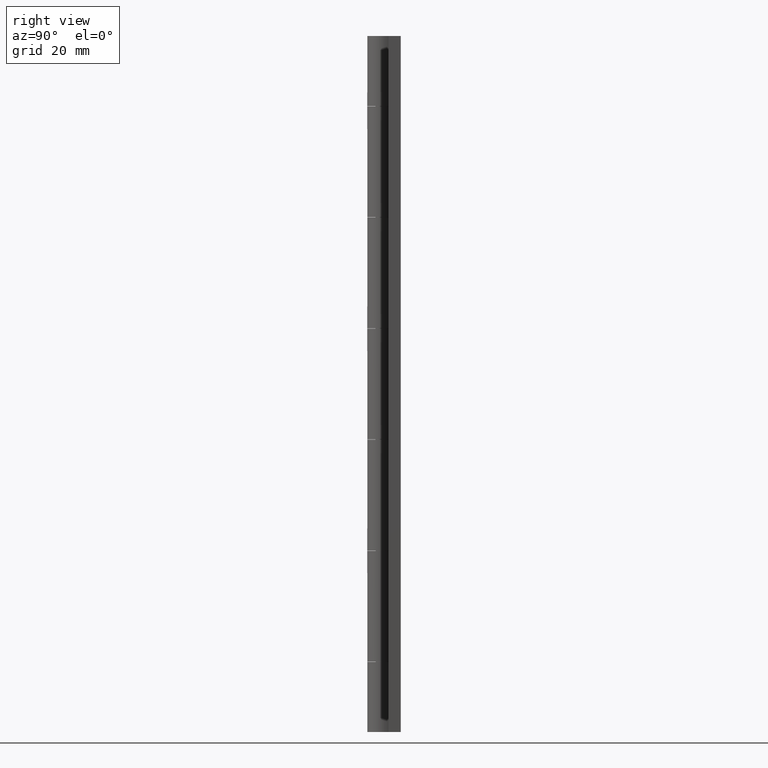
[diagram: clean part render]
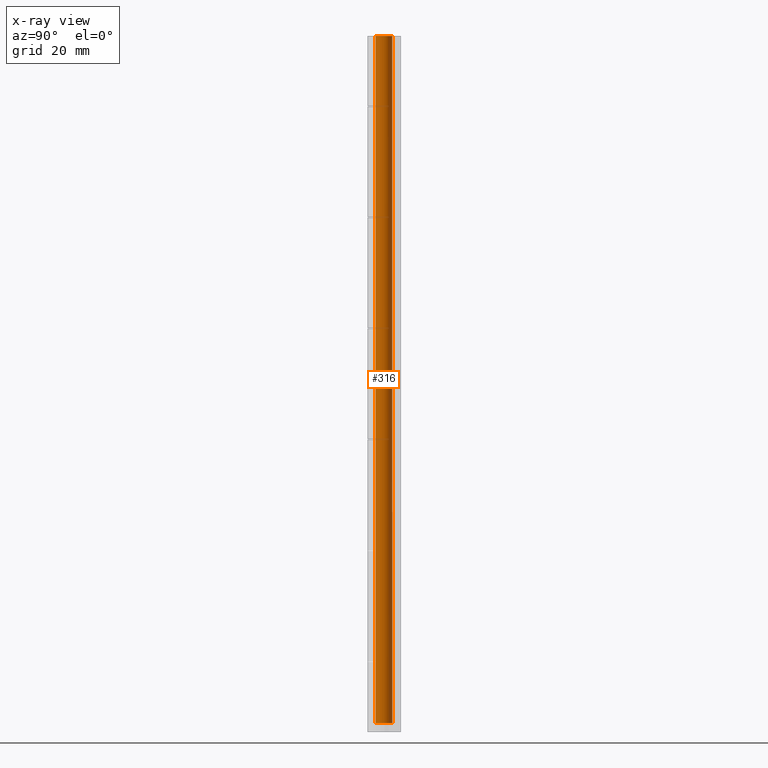
[diagram: x-ray — body ghosted, one internal face saturated and labeled with its STEP entity id]
A machine part, right view, then the same camera in x-ray: the body is ghosted and one INTERNAL B-rep face — a face not visible from any outside direction — is saturated and labeled: STEP entity #316.
In plain terms, the highlighted face is a freeform B-spline surface patch.
Its self-contained STEP definition (entity closure, byte-faithful):
#62=CARTESIAN_POINT('',(1.404215367375836,0.527426964561616,1.604705109890460));
#63=VERTEX_POINT('',#62);
#64=CARTESIAN_POINT('',(1.500000000000000,0.0,1.604705110105455));
#65=VERTEX_POINT('',#64);
#66=CARTESIAN_POINT('',(1.404215367375836,0.527426964561616,1.604705109890460));
#67=CARTESIAN_POINT('',(1.500000000000000,0.272411082262935,1.604705110105456));
#68=CARTESIAN_POINT('',(1.500000000000000,0.0,1.604705110105455));
#76=(BOUNDED_CURVE()B_SPLINE_CURVE(2,(#66,#67,#68),.UNSPECIFIED.,.F.,.U.)B_SPLINE_CURVE_WITH_KNOTS((3,3),(0.440284170254092,0.500000000000000),.UNSPECIFIED.)CURVE()GEOMETRIC_REPRESENTATION_ITEM()RATIONAL_B_SPLINE_CURVE((0.893499553846663,0.930038553646420,1.0))REPRESENTATION_ITEM(''));
#77=EDGE_CURVE('',#63,#65,#76,.T.);
#79=CARTESIAN_POINT('',(0.091572809773356,-1.497202197603987,1.604705110105459));
#80=VERTEX_POINT('',#79);
#81=CARTESIAN_POINT('',(1.500000000000000,0.0,1.604705110105455));
#82=CARTESIAN_POINT('',(1.499999999999999,-1.411059098579355,1.604705110105455));
#83=CARTESIAN_POINT('',(0.091572809773356,-1.497202197603987,1.604705110105460));
#91=(BOUNDED_CURVE()B_SPLINE_CURVE(2,(#81,#82,#83),.UNSPECIFIED.,.F.,.U.)B_SPLINE_CURVE_WITH_KNOTS((3,3),(0.500000000000000,0.739332962024812),.UNSPECIFIED.)CURVE()GEOMETRIC_REPRESENTATION_ITEM()RATIONAL_B_SPLINE_CURVE((1.0,0.719603993537580,0.976072041207794))REPRESENTATION_ITEM(''));
#92=EDGE_CURVE('',#65,#80,#91,.T.);
#161=CARTESIAN_POINT('',(-0.177051352957087,1.489514289429969,1.604705110105461));
#162=VERTEX_POINT('',#161);
#163=CARTESIAN_POINT('',(-0.177051352957087,1.489514289429969,1.604705110105461));
#164=CARTESIAN_POINT('',(-0.088836180460090,1.500000000000000,1.604705110105455));
#165=CARTESIAN_POINT('',(0.0,1.500000000000000,1.604705110105455));
#166=CARTESIAN_POINT('',(1.038914389011040,1.500000000000000,1.604705110105455));
#167=CARTESIAN_POINT('',(1.404215367375836,0.527426964561616,1.604705109890460));
#175=(BOUNDED_CURVE()B_SPLINE_CURVE(2,(#163,#164,#165,#166,#167),.UNSPECIFIED.,.F.,.U.)B_SPLINE_CURVE_WITH_KNOTS((3,2,3),(0.229562473295086,0.250000000000000,0.440284170254092),.UNSPECIFIED.)CURVE()GEOMETRIC_REPRESENTATION_ITEM()RATIONAL_B_SPLINE_CURVE((0.956026753755582,0.976055948075247,1.0,0.777068227540128,0.893499553846662))REPRESENTATION_ITEM(''));
#176=EDGE_CURVE('',#162,#63,#175,.T.);
#245=CARTESIAN_POINT('',(-0.177051351985138,1.489514289545500,128.084882372247390));
#246=CARTESIAN_POINT('',(-0.134422092956966,1.494581423172908,128.084882372247420));
#247=CARTESIAN_POINT('',(-0.091572809302285,1.497202197632800,128.084882372247390));
#248=CARTESIAN_POINT('',(1.405629388330515,1.588775006935085,128.084882372247390));
#249=CARTESIAN_POINT('',(1.497202197632800,0.091572809302285,128.084882372247390));
#250=CARTESIAN_POINT('',(1.588775006935085,-1.405629388330515,128.084882372247390));
#251=CARTESIAN_POINT('',(0.091572809302285,-1.497202197632800,128.084882372247390));
#252=CARTESIAN_POINT('',(-0.177051351985138,1.489514289545500,-1.557299321448100));
#253=CARTESIAN_POINT('',(-0.134422092956966,1.494581423172908,-1.557299321448099));
#254=CARTESIAN_POINT('',(-0.091572809302285,1.497202197632800,-1.557299321448099));
#255=CARTESIAN_POINT('',(1.405629388330515,1.588775006935085,-1.557299321448099));
#256=CARTESIAN_POINT('',(1.497202197632800,0.091572809302285,-1.557299321448099));
#257=CARTESIAN_POINT('',(1.588775006935085,-1.405629388330515,-1.557299321448099));
#258=CARTESIAN_POINT('',(0.091572809302285,-1.497202197632800,-1.557299321448099));
#266=(BOUNDED_SURFACE()B_SPLINE_SURFACE(2,1,((#245,#252),(#246,#253),(#247,#254),(#248,#255),(#249,#256),(#250,#257),(#251,#258)),.UNSPECIFIED.,.F.,.F.,.U.)B_SPLINE_SURFACE_WITH_KNOTS((3,2,2,3),(2,2),(3.078760800517997,3.141592653589793,4.712388980384690,6.283185307179586),(0.0,129.642181693695510),.UNSPECIFIED.)GEOMETRIC_REPRESENTATION_ITEM()RATIONAL_B_SPLINE_SURFACE(((0.977505800795127,0.977505800795127),(0.988284271247462,0.988284271247462),(1.0,1.0),(0.707106781186548,0.707106781186548),(1.0,1.0),(0.707106781186548,0.707106781186548),(1.0,1.0)))REPRESENTATION_ITEM('')SURFACE());
#267=ORIENTED_EDGE('',*,*,#176,.F.);
#268=CARTESIAN_POINT('',(-0.177051352957088,1.489514289429969,125.0));
#269=VERTEX_POINT('',#268);
#270=CARTESIAN_POINT('',(-0.177051352957088,1.489514289429969,125.0));
#271=CARTESIAN_POINT('',(-0.177051352957087,1.489514289429969,1.604705110105461));
#272=QUASI_UNIFORM_CURVE('',1,(#270,#271),.UNSPECIFIED.,.F.,.U.);
#273=EDGE_CURVE('',#269,#162,#272,.T.);
#274=ORIENTED_EDGE('',*,*,#273,.F.);
#275=CARTESIAN_POINT('',(1.500000000000000,0.0,125.0));
#276=VERTEX_POINT('',#275);
#277=CARTESIAN_POINT('',(-0.177051352957088,1.489514289429968,125.000000000000030));
#278=CARTESIAN_POINT('',(-0.088836180460091,1.500000000000000,124.999999999999970));
#279=CARTESIAN_POINT('',(0.0,1.500000000000000,125.0));
#280=CARTESIAN_POINT('',(1.500000000000000,1.500000000000000,125.0));
#281=CARTESIAN_POINT('',(1.500000000000000,0.0,125.0));
#289=(BOUNDED_CURVE()B_SPLINE_CURVE(2,(#277,#278,#279,#280,#281),.UNSPECIFIED.,.F.,.U.)B_SPLINE_CURVE_WITH_KNOTS((3,2,3),(0.229562473295085,0.250000000000000,0.500000000000000),.UNSPECIFIED.)CURVE()GEOMETRIC_REPRESENTATION_ITEM()RATIONAL_B_SPLINE_CURVE((0.956026753755581,0.976055948075247,1.0,0.707106781186548,1.0))REPRESENTATION_ITEM(''));
#290=EDGE_CURVE('',#269,#276,#289,.T.);
#291=ORIENTED_EDGE('',*,*,#290,.T.);
#292=CARTESIAN_POINT('',(0.091572810244427,-1.497202197575176,125.0));
#293=VERTEX_POINT('',#292);
#294=CARTESIAN_POINT('',(1.500000000000000,0.0,125.0));
#295=CARTESIAN_POINT('',(1.499999999999999,-1.411059098579355,124.999999999999990));
#296=CARTESIAN_POINT('',(0.091572810244427,-1.497202197575177,125.000000000000030));
#304=(BOUNDED_CURVE()B_SPLINE_CURVE(2,(#294,#295,#296),.UNSPECIFIED.,.F.,.U.)B_SPLINE_CURVE_WITH_KNOTS((3,3),(0.500000000000000,0.739332962024812),.UNSPECIFIED.)CURVE()GEOMETRIC_REPRESENTATION_ITEM()RATIONAL_B_SPLINE_CURVE((1.0,0.719603993537580,0.976072041207794))REPRESENTATION_ITEM(''));
#305=EDGE_CURVE('',#276,#293,#304,.T.);
#306=ORIENTED_EDGE('',*,*,#305,.T.);
#307=CARTESIAN_POINT('',(0.091572810244427,-1.497202197575176,125.0));
#308=CARTESIAN_POINT('',(0.091572809773356,-1.497202197603987,1.604705110105459));
#309=QUASI_UNIFORM_CURVE('',1,(#307,#308),.UNSPECIFIED.,.F.,.U.);
#310=EDGE_CURVE('',#293,#80,#309,.T.);
#311=ORIENTED_EDGE('',*,*,#310,.T.);
#312=ORIENTED_EDGE('',*,*,#92,.F.);
#313=ORIENTED_EDGE('',*,*,#77,.F.);
#314=EDGE_LOOP('',(#267,#274,#291,#306,#311,#312,#313));
#315=FACE_OUTER_BOUND('',#314,.T.);
#316=ADVANCED_FACE('',(#315),#266,.T.);